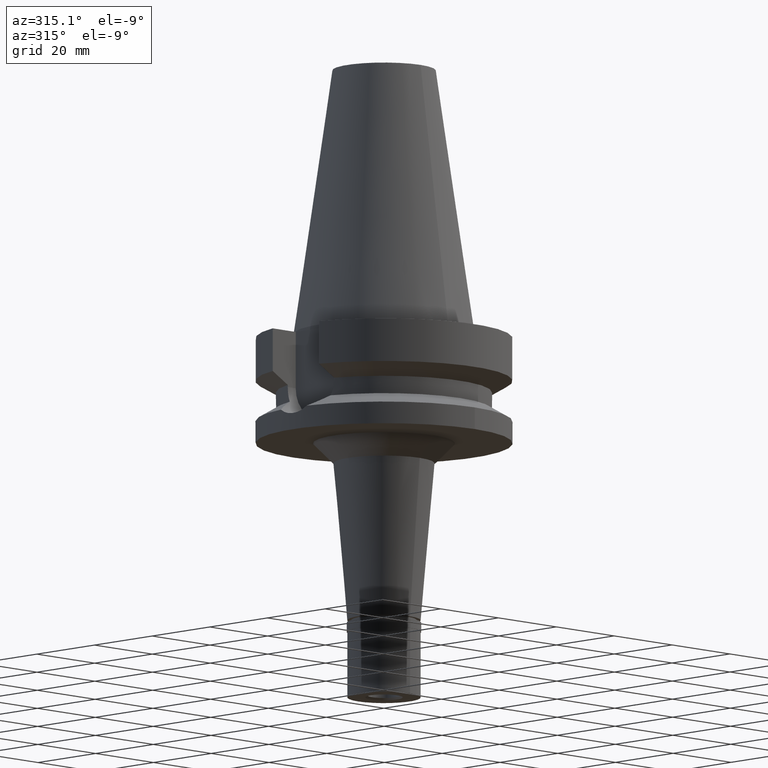
[diagram: clean part render]
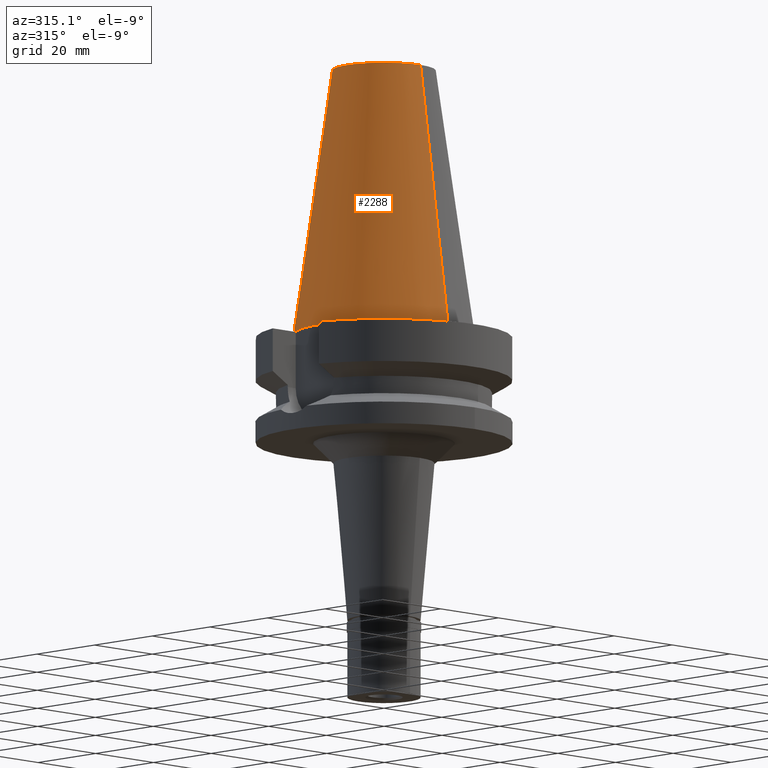
[diagram: same view with one face highlighted and labeled with its STEP entity id]
A machine part, auxiliary view. The second image highlights one B-rep face of the part: STEP entity #2288.
In plain terms, the highlighted conical surface has half-angle 8.297 deg.
Its self-contained STEP definition (entity closure, byte-faithful):
#5 = DIRECTION ( 'NONE',  ( 0.0000000000000000000, 0.0000000000000000000, -1.000000000000000000 ) ) ;
#13 = DIRECTION ( 'NONE',  ( 0.0000000000000000000, -1.000000000000000000, 0.0000000000000000000 ) ) ;
#20 = DIRECTION ( 'NONE',  ( 0.0000000000000000000, -1.000000000000000000, 0.0000000000000000000 ) ) ;
#116 = VERTEX_POINT ( 'NONE', #2610 ) ;
#172 = CIRCLE ( 'NONE', #1138, 22.22500000000000142 ) ;
#177 = ORIENTED_EDGE ( 'NONE', *, *, #2249, .F. ) ;
#246 = VERTEX_POINT ( 'NONE', #1743 ) ;
#257 = DIRECTION ( 'NONE',  ( 0.0000000000000000000, -1.000000000000000000, 0.0000000000000000000 ) ) ;
#478 = CARTESIAN_POINT ( 'NONE',  ( 0.0000000000000000000, 12.68766899429999917, 65.40000000000000568 ) ) ;
#541 = CIRCLE ( 'NONE', #1748, 12.68766899429999917 ) ;
#574 = CARTESIAN_POINT ( 'NONE',  ( 0.0000000000000000000, 12.68766899429999917, 65.40000000000000568 ) ) ;
#830 = VECTOR ( 'NONE', #1737, 1000.000000000000114 ) ;
#841 = CARTESIAN_POINT ( 'NONE',  ( 0.0000000000000000000, -22.22500000000000142, 7.105427357600999334E-14 ) ) ;
#944 = FACE_OUTER_BOUND ( 'NONE', #1800, .T. ) ;
#967 = CARTESIAN_POINT ( 'NONE',  ( 0.0000000000000000000, 1.625106302469000024E-14, 2.842170943039999687E-14 ) ) ;
#1019 = LINE ( 'NONE', #574, #2839 ) ;
#1138 = AXIS2_PLACEMENT_3D ( 'NONE', #967, #2114, #13 ) ;
#1165 = CARTESIAN_POINT ( 'NONE',  ( 0.0000000000000000000, 1.625106302469000024E-14, 32.70000000000000284 ) ) ;
#1348 = ORIENTED_EDGE ( 'NONE', *, *, #1633, .T. ) ;
#1389 = CARTESIAN_POINT ( 'NONE',  ( 0.0000000000000000000, 1.625106302469000024E-14, 65.40000000000000568 ) ) ;
#1481 = EDGE_CURVE ( 'NONE', #2103, #116, #172, .T. ) ;
#1493 = LINE ( 'NONE', #2685, #830 ) ;
#1534 = ORIENTED_EDGE ( 'NONE', *, *, #2396, .T. ) ;
#1549 = CONICAL_SURFACE ( 'NONE', #2524, 17.45633449714999941, 0.1448099680379422438 ) ;
#1582 = DIRECTION ( 'NONE',  ( 0.0000000000000000000, 0.0000000000000000000, -1.000000000000000000 ) ) ;
#1633 = EDGE_CURVE ( 'NONE', #2429, #116, #1019, .T. ) ;
#1737 = DIRECTION ( 'NONE',  ( 0.0000000000000000000, -0.1443043893539925626, -0.9895333461855498891 ) ) ;
#1743 = CARTESIAN_POINT ( 'NONE',  ( 0.0000000000000000000, -12.68766899429999917, 65.40000000000000568 ) ) ;
#1748 = AXIS2_PLACEMENT_3D ( 'NONE', #1389, #5, #20 ) ;
#1800 = EDGE_LOOP ( 'NONE', ( #2183, #177, #1534, #1348 ) ) ;
#1930 = DIRECTION ( 'NONE',  ( 0.0000000000000000000, 0.1443043893539925626, -0.9895333461855498891 ) ) ;
#2103 = VERTEX_POINT ( 'NONE', #841 ) ;
#2114 = DIRECTION ( 'NONE',  ( 0.0000000000000000000, 0.0000000000000000000, -1.000000000000000000 ) ) ;
#2183 = ORIENTED_EDGE ( 'NONE', *, *, #1481, .F. ) ;
#2249 = EDGE_CURVE ( 'NONE', #246, #2103, #1493, .T. ) ;
#2288 = ADVANCED_FACE ( 'NONE', ( #944 ), #1549, .T. ) ;
#2396 = EDGE_CURVE ( 'NONE', #246, #2429, #541, .T. ) ;
#2429 = VERTEX_POINT ( 'NONE', #478 ) ;
#2524 = AXIS2_PLACEMENT_3D ( 'NONE', #1165, #1582, #257 ) ;
#2610 = CARTESIAN_POINT ( 'NONE',  ( 0.0000000000000000000, 22.22500000000000142, 7.105427357600999334E-14 ) ) ;
#2685 = CARTESIAN_POINT ( 'NONE',  ( 0.0000000000000000000, -12.68766899429999917, 65.40000000000000568 ) ) ;
#2839 = VECTOR ( 'NONE', #1930, 1000.000000000000114 ) ;